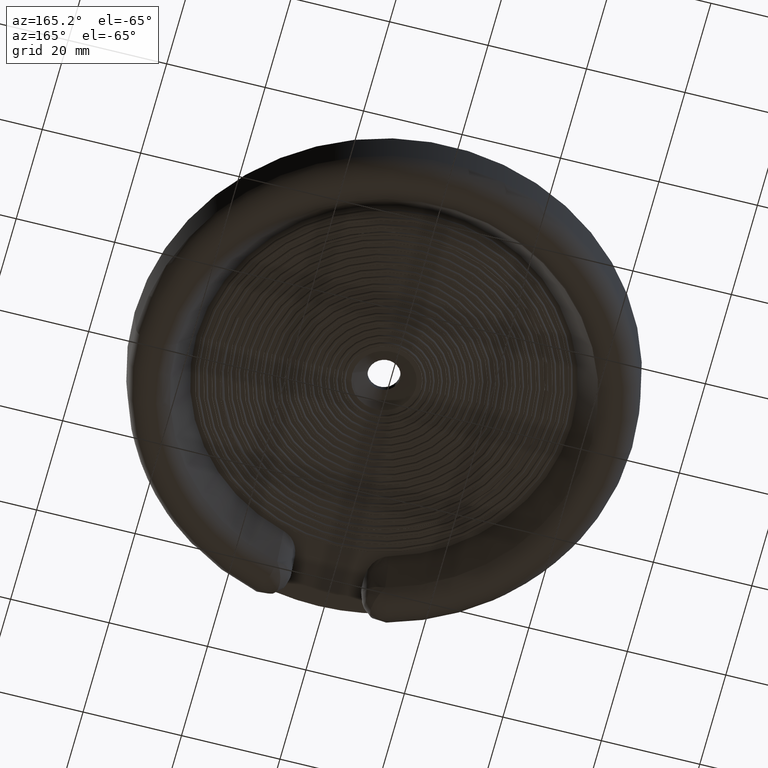
[diagram: clean part render]
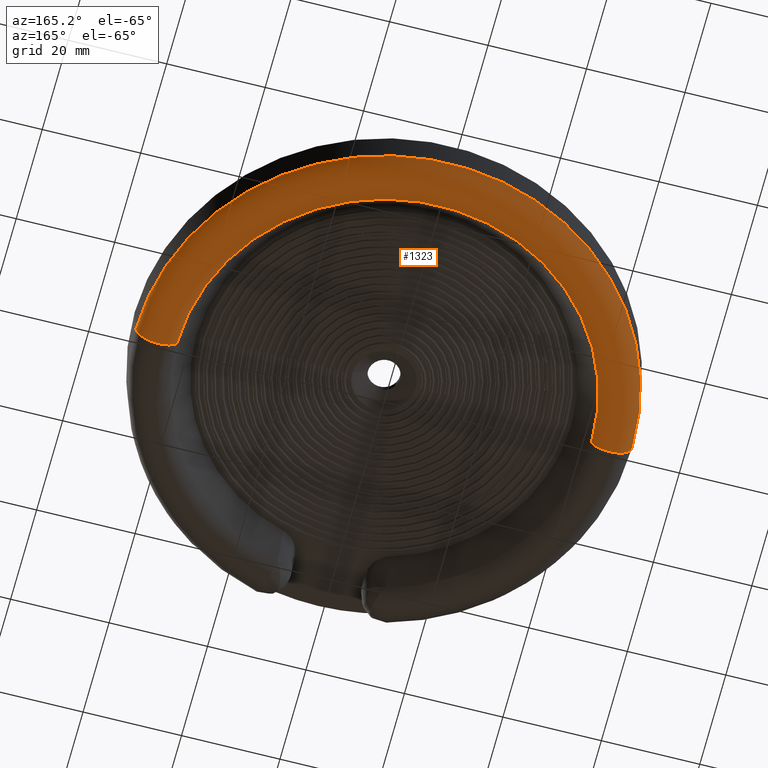
[diagram: same view with one face highlighted and labeled with its STEP entity id]
A machine part, auxiliary view. The second image highlights one B-rep face of the part: STEP entity #1323.
In plain terms, the highlighted toroidal blend (fillet) surface has major radius 45.8656 mm and minor (blend) radius 4.5357 mm.
Its self-contained STEP definition (entity closure, byte-faithful):
#7 = AXIS2_PLACEMENT_3D ( 'NONE', #2533, #2534, #2535 ) ;
#9 = AXIS2_PLACEMENT_3D ( 'NONE', #2541, #2542, #2543 ) ;
#11 = AXIS2_PLACEMENT_3D ( 'NONE', #2553, #2555, #2556 ) ;
#12 = AXIS2_PLACEMENT_3D ( 'NONE', #2544, #2546, #2547 ) ;
#449 = ORIENTED_EDGE ( 'NONE', *, *, #5339, .T. ) ;
#458 = ORIENTED_EDGE ( 'NONE', *, *, #5336, .F. ) ;
#625 = VERTEX_POINT ( 'NONE', #1007 ) ;
#629 = VERTEX_POINT ( 'NONE', #1011 ) ;
#634 = VERTEX_POINT ( 'NONE', #1016 ) ;
#636 = VERTEX_POINT ( 'NONE', #1018 ) ;
#807 = FACE_OUTER_BOUND ( 'NONE', #5835, .T. ) ;
#810 = TOROIDAL_SURFACE ( 'NONE', #3438, 1.805731339231681200, 0.1785701401265921400 ) ;
#1007 = CARTESIAN_POINT ( 'NONE',  ( 1.657689983730317000, 6.871685202678650100E-015, -0.5462850150039734200 ) ) ;
#1011 = CARTESIAN_POINT ( 'NONE',  ( 1.984192699253720700, 6.908535691779286100E-015, -0.4526618678899334000 ) ) ;
#1016 = CARTESIAN_POINT ( 'NONE',  ( -1.657689983730317000, 6.446519103767712300E-015, -0.5462850150039734200 ) ) ;
#1018 = CARTESIAN_POINT ( 'NONE',  ( -1.984192699253703100, 6.445252525975564500E-015, -0.4526618678899335100 ) ) ;
#1323 = ADVANCED_FACE ( 'NONE', ( #807 ), #810, .T. ) ;
#2533 = CARTESIAN_POINT ( 'NONE',  ( 0.0000000000000000000, 3.278217592397115900E-015, -0.5462850150039734200 ) ) ;
#2534 = DIRECTION ( 'NONE',  ( 0.0000000000000000000, -1.665334536937734100E-016, -1.000000000000000000 ) ) ;
#2535 = DIRECTION ( 'NONE',  ( -1.000000000000000000, -5.551115123125785200E-017, -4.119962146837549300E-017 ) ) ;
#2541 = CARTESIAN_POINT ( 'NONE',  ( 1.805731339231689600, 6.877811720720357100E-015, -0.4464298598734275900 ) ) ;
#2542 = DIRECTION ( 'NONE',  ( -1.779758311459932000E-016, 1.000000000000000000, -1.665334536937734100E-016 ) ) ;
#2543 = DIRECTION ( 'NONE',  ( -1.000000000000000000, -1.779758311459940100E-016, 0.0000000000000000000 ) ) ;
#2544 = CARTESIAN_POINT ( 'NONE',  ( 8.741913579725642300E-015, 0.0000000000000000000, -0.4526618678899334600 ) ) ;
#2546 = DIRECTION ( 'NONE',  ( 0.0000000000000000000, -1.665334536937734100E-016, -1.000000000000000000 ) ) ;
#2547 = DIRECTION ( 'NONE',  ( -1.000000000000000000, -5.551115123125785200E-017, -6.884028942077441600E-017 ) ) ;
#2553 = CARTESIAN_POINT ( 'NONE',  ( -1.805731339231672100, 6.456196959339120000E-015, -0.4464298598734277000 ) ) ;
#2555 = DIRECTION ( 'NONE',  ( 5.551115123125782700E-017, -1.000000000000000000, 1.665334536937734100E-016 ) ) ;
#2556 = DIRECTION ( 'NONE',  ( 0.0000000000000000000, -1.665334536937744200E-016, -1.000000000000000000 ) ) ;
#3403 = ORIENTED_EDGE ( 'NONE', *, *, #5344, .F. ) ;
#3410 = ORIENTED_EDGE ( 'NONE', *, *, #5341, .T. ) ;
#3438 = AXIS2_PLACEMENT_3D ( 'NONE', #4315, #4310, #4320 ) ;
#3539 = CIRCLE ( 'NONE', #7, 1.657689983730316700 ) ;
#3543 = CIRCLE ( 'NONE', #9, 0.1785701401265920300 ) ;
#3544 = CIRCLE ( 'NONE', #12, 1.984192699253712200 ) ;
#3547 = CIRCLE ( 'NONE', #11, 0.1785701401265921100 ) ;
#4310 = DIRECTION ( 'NONE',  ( 0.0000000000000000000, -1.665334536937734100E-016, -1.000000000000000000 ) ) ;
#4315 = CARTESIAN_POINT ( 'NONE',  ( 8.741913579725642300E-015, 6.556435184794231700E-015, -0.4464298598734276500 ) ) ;
#4320 = DIRECTION ( 'NONE',  ( -1.000000000000000000, -5.551115123125795000E-017, 1.528477690458090000E-032 ) ) ;
#5336 = EDGE_CURVE ( 'NONE', #634, #625, #3539, .T. ) ;
#5339 = EDGE_CURVE ( 'NONE', #629, #625, #3543, .T. ) ;
#5341 = EDGE_CURVE ( 'NONE', #636, #629, #3544, .T. ) ;
#5344 = EDGE_CURVE ( 'NONE', #636, #634, #3547, .T. ) ;
#5835 = EDGE_LOOP ( 'NONE', ( #3410, #449, #458, #3403 ) ) ;